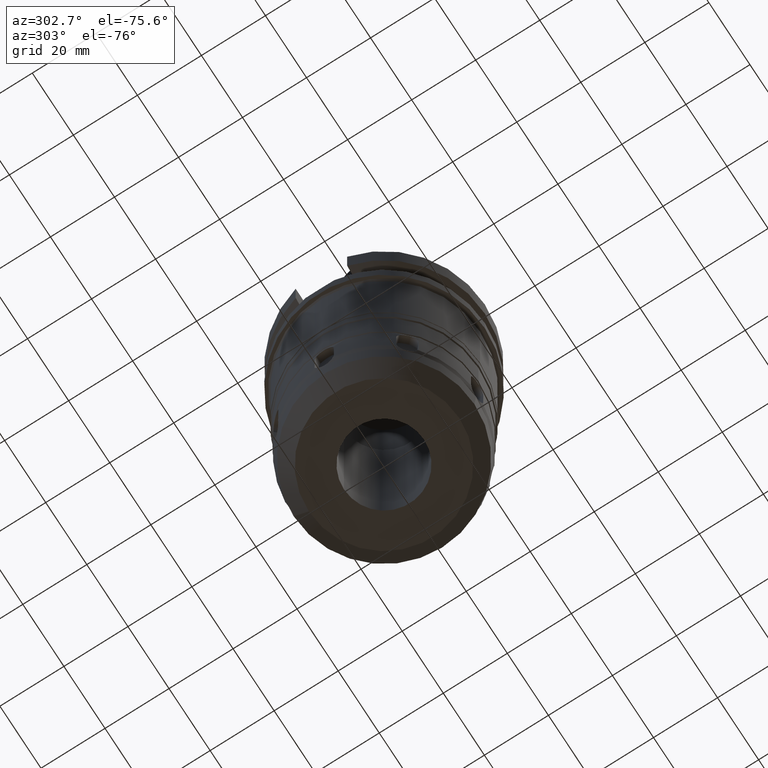
[diagram: clean part render]
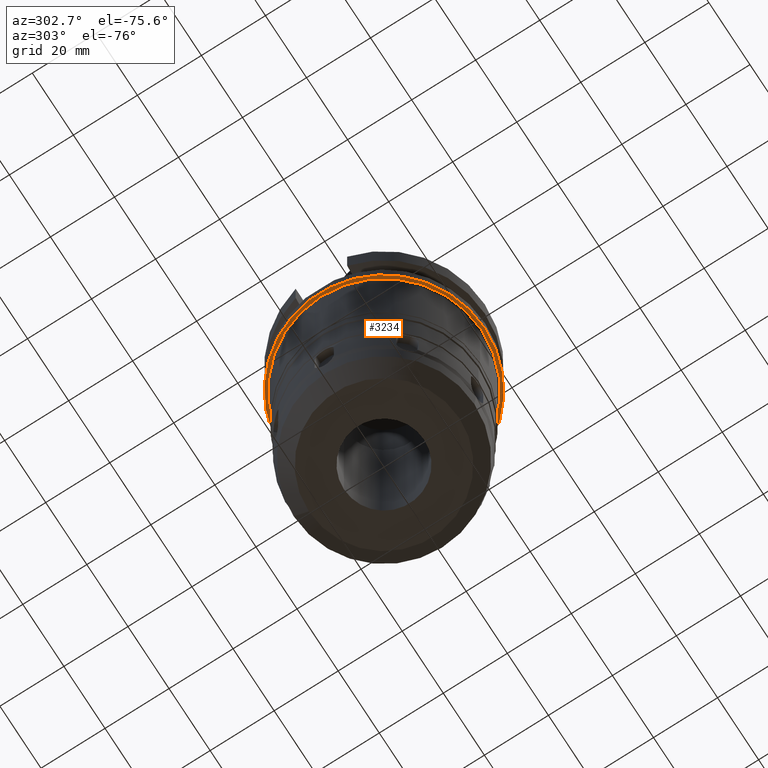
[diagram: same view with one face highlighted and labeled with its STEP entity id]
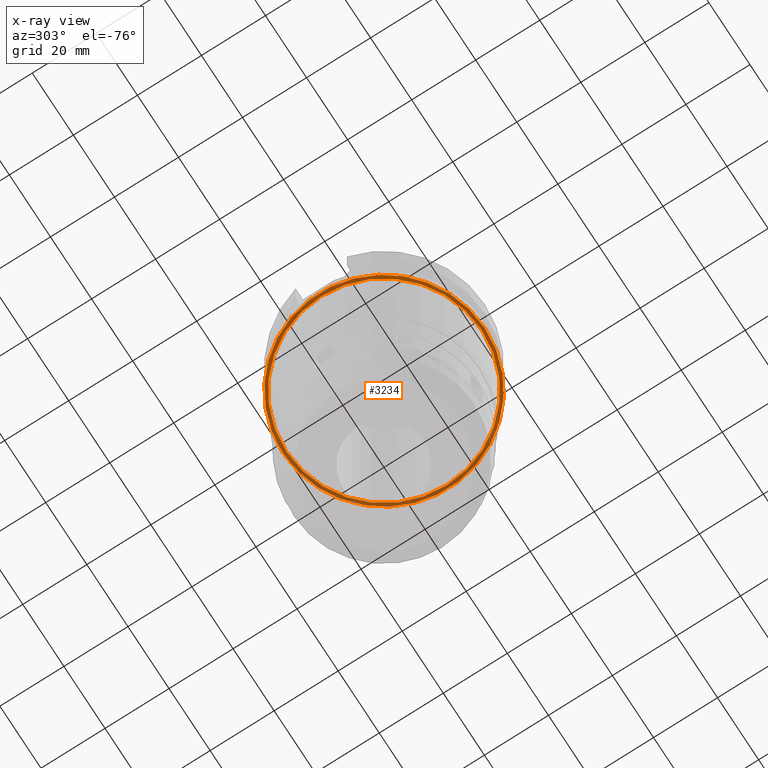
[diagram: x-ray of the same camera — body ghosted, the highlighted face saturated]
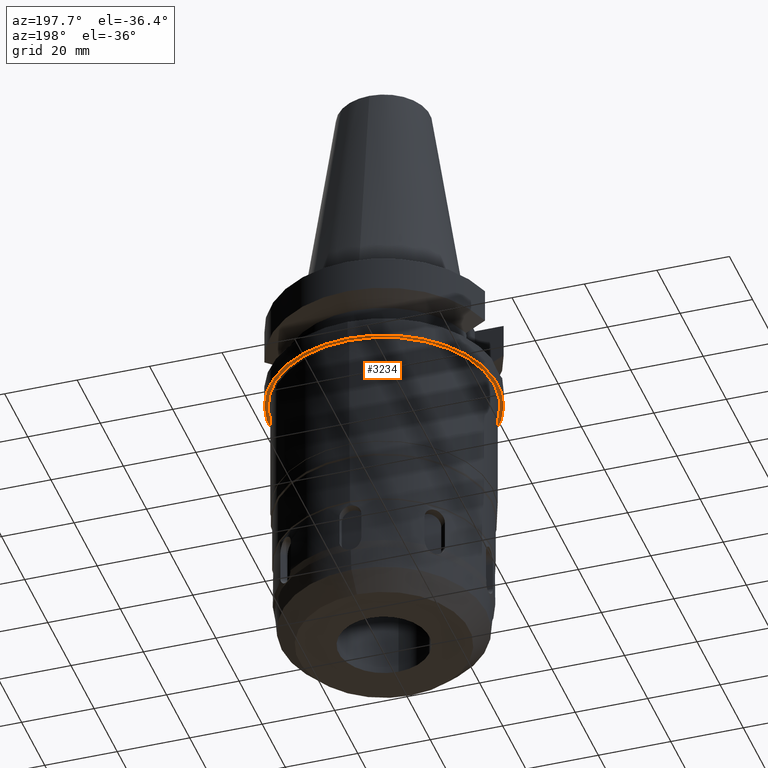
[diagram: same view with one face highlighted and labeled with its STEP entity id]
A machine part, auxiliary view. The second image highlights one B-rep face of the part: STEP entity #3234.
The next image is the same camera in x-ray: the body ghosted, the highlighted face saturated — about 42% of this face is hidden behind the body in this view.
A second angle (auxiliary view) of the same face is appended — the face is thin or edge-on in the first view.
In plain terms, the highlighted planar face has unit normal (0, 0, -1).
Its self-contained STEP definition (entity closure, byte-faithful):
#629=CARTESIAN_POINT('',(0.E0,2.129905713077E-14,-2.7E1));
#630=DIRECTION('',(0.E0,0.E0,1.E0));
#631=DIRECTION('',(0.E0,-1.E0,0.E0));
#632=AXIS2_PLACEMENT_3D('',#629,#630,#631);
#637=CARTESIAN_POINT('',(0.E0,2.129905713077E-14,-2.7E1));
#638=DIRECTION('',(0.E0,0.E0,1.E0));
#639=DIRECTION('',(0.E0,1.E0,0.E0));
#640=AXIS2_PLACEMENT_3D('',#637,#638,#639);
#645=CARTESIAN_POINT('',(0.E0,0.E0,-2.7E1));
#646=DIRECTION('',(0.E0,0.E0,-1.E0));
#647=DIRECTION('',(0.E0,-1.E0,0.E0));
#648=AXIS2_PLACEMENT_3D('',#645,#646,#647);
#653=CARTESIAN_POINT('',(0.E0,0.E0,-2.7E1));
#654=DIRECTION('',(0.E0,0.E0,-1.E0));
#655=DIRECTION('',(0.E0,1.E0,0.E0));
#656=AXIS2_PLACEMENT_3D('',#653,#654,#655);
#2637=CARTESIAN_POINT('',(0.E0,3.05E1,-2.7E1));
#2638=VERTEX_POINT('',#2637);
#2639=CARTESIAN_POINT('',(0.E0,-3.05E1,-2.7E1));
#2640=VERTEX_POINT('',#2639);
#2641=CARTESIAN_POINT('',(0.E0,-3.15E1,-2.7E1));
#2642=CARTESIAN_POINT('',(0.E0,3.15E1,-2.7E1));
#2643=VERTEX_POINT('',#2641);
#2644=VERTEX_POINT('',#2642);
#3219=CARTESIAN_POINT('',(0.E0,0.E0,-2.7E1));
#3220=DIRECTION('',(0.E0,0.E0,-1.E0));
#3221=DIRECTION('',(0.E0,-1.E0,0.E0));
#3222=AXIS2_PLACEMENT_3D('',#3219,#3220,#3221);
#3223=PLANE('',#3222);
#3224=ORIENTED_EDGE('',*,*,#3181,.T.);
#3225=ORIENTED_EDGE('',*,*,#3212,.T.);
#3226=EDGE_LOOP('',(#3224,#3225));
#3227=FACE_OUTER_BOUND('',#3226,.F.);
#3229=ORIENTED_EDGE('',*,*,#3228,.T.);
#3231=ORIENTED_EDGE('',*,*,#3230,.T.);
#3232=EDGE_LOOP('',(#3229,#3231));
#3233=FACE_BOUND('',#3232,.F.);
#633=CIRCLE('',#632,3.15E1);
#641=CIRCLE('',#640,3.15E1);
#649=CIRCLE('',#648,3.05E1);
#657=CIRCLE('',#656,3.05E1);
#3181=EDGE_CURVE('',#2643,#2644,#633,.T.);
#3212=EDGE_CURVE('',#2644,#2643,#641,.T.);
#3228=EDGE_CURVE('',#2640,#2638,#649,.T.);
#3230=EDGE_CURVE('',#2638,#2640,#657,.T.);
#3234=ADVANCED_FACE('',(#3227,#3233),#3223,.T.);